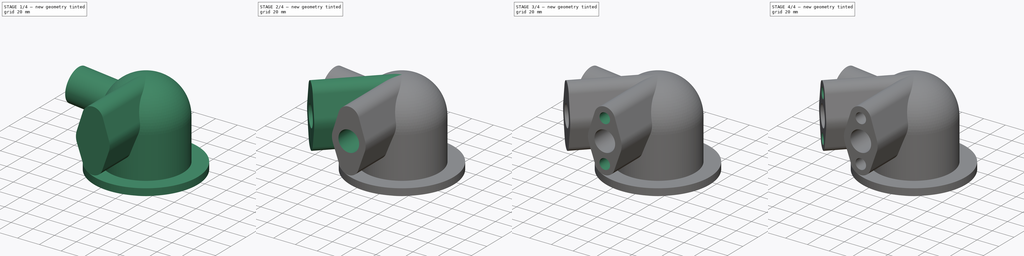
[diagram: build sequence overview — one tinted view per stage of 4, left to right]
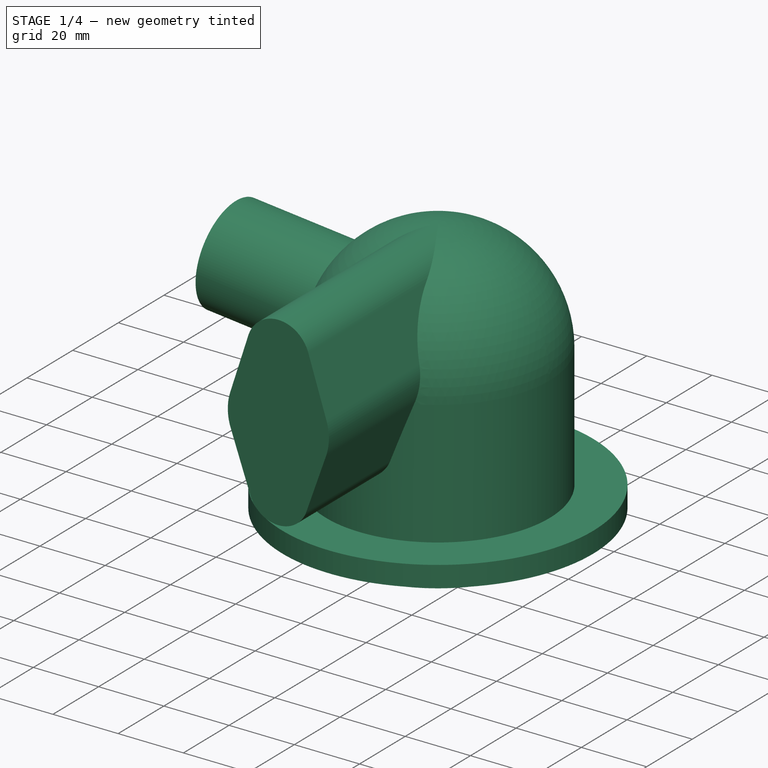
[diagram: stage 1 of 4 — iso view after this stage's code; geometry added in this stage tinted green]
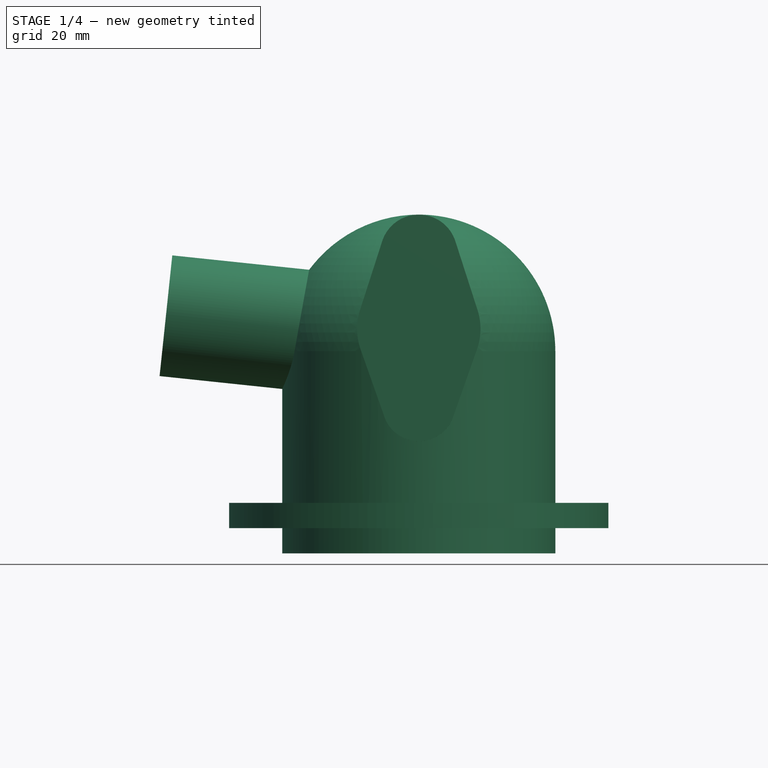
[diagram: stage 1 of 4 — front view after this stage's code; geometry added in this stage tinted green]
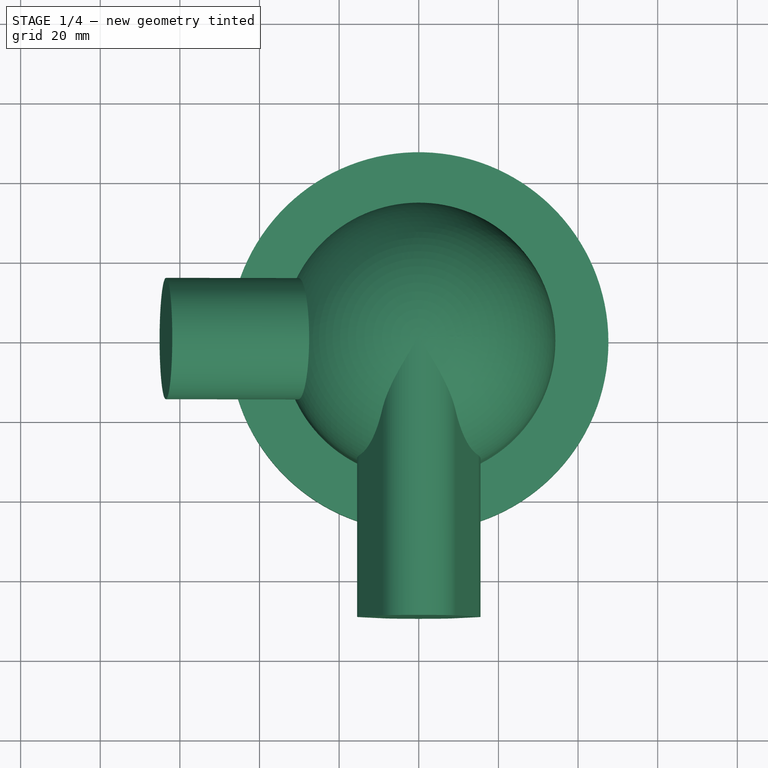
[diagram: stage 1 of 4 — top view after this stage's code; geometry added in this stage tinted green]
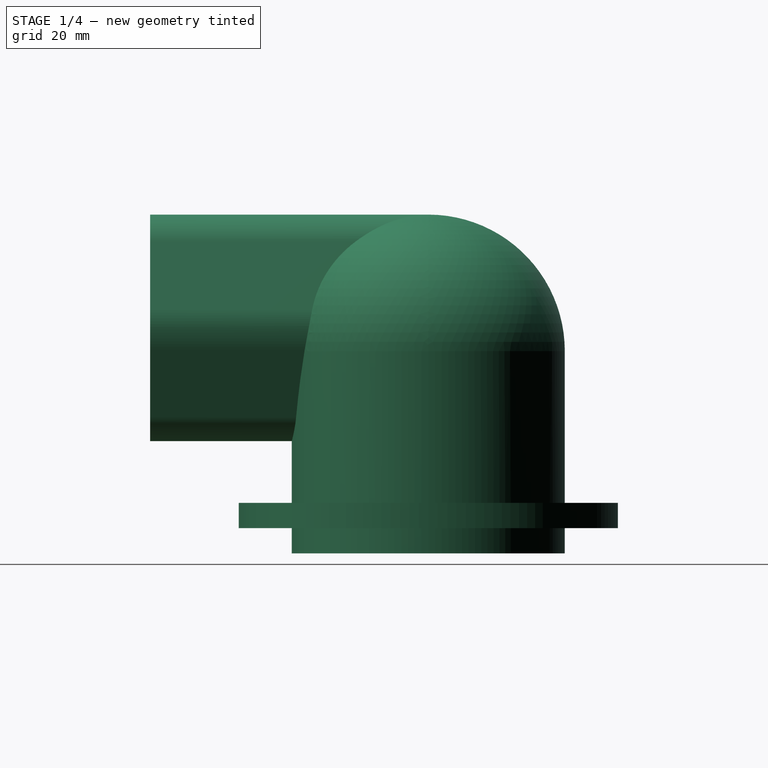
[diagram: stage 1 of 4 — right view after this stage's code; geometry added in this stage tinted green]
FCSTD DOCUMENT  (FreeCAD 1.0RUnknown)
Label: model-mania-2000
License: All rights reserved
LicenseURL: https://en.wikipedia.org/wiki/All_rights_reserved
objects: Sketcher::SketchObject×8, PartDesign::PolarPattern×3, PartDesign::Pocket×3, PartDesign::Revolution×2, PartDesign::Groove×2, Spreadsheet::Sheet×1, PartDesign::Line×1, PartDesign::Pad×1, PartDesign::Body×1
note: 48 computed .brp shape members not serialized (recipe doc carries the construction recipe); baked Part::Feature solids carry a one-line shape summary decoded from their .brp

FEATURE [Spreadsheet::Sheet] Spreadsheet  label="d"
  cells = A1='Toplevel; B1='TL; D1='TL_height; E1(TL_height)==3.35 "; A2='Dome; B2='DM; D2='DM_od; E2(DM_od)==2.7 "; A3='Pipe; B3='PI; D3='DM_thickness; E3(DM_thickness)==0.25 "; A4='Flange; B4='FG; D4='SH_diam; E4(SH_diam)==3.75 "; A5='Shoulder; B5='SH; D5='SH_thickness; E5(SH_thickness)==0.25 "; D6='SH_yos; E6(SH_yos)==0.25 "; D7='FG_height; E7(FG_height)==2.23 "; D8='FG_length; E8(FG_length)==2.75 "; D9='PI_center_out_h; E9(PI_center_out_h)==2.35 "; D10='PI_angle; E10(PI_angle)=6; D11='PI_od; E11(PI_od)==1.2 "; D12='PI_id; E12(PI_id)==0.82 "; D13='PI_length; E13(PI_length)==2.5 "
FEATURE [Sketcher::SketchObject] Sketch  label="MasterFront"
  ArcFitTolerance = 1e-06
  AttachmentSupport = -> [XZ_Plane]
  FullyConstrained = true
  MakeInternals = false
  MapMode = 5
  Placement = pos=(0,0,0) rot=(1,0,0;1.5708rad)
  expr: Constraints[45] = <<d>>.PI_angle
  expr: Constraints[46] = <<d>>.PI_length
  expr: Constraints[51] = <<d>>.PI_od
  expr: Constraints[52] = <<d>>.PI_center_out_h
  expr: Constraints[53] = <<d>>.DM_od
  expr: Constraints[54] = <<d>>.SH_yos
  expr: Constraints[55] = <<d>>.SH_thickness
  expr: Constraints[56] = <<d>>.SH_diam
  expr: Constraints[62] = (<<d>>.PI_od - <<d>>.PI_id) / 2
  expr: Constraints[68] = (<<d>>.PI_od - <<d>>.PI_id) / 2
  expr: Constraints[71] = <<d>>.TL_height
  sketch-geometry (26):
    g0: LineSegment [constr] StartX=-34.29 StartY=0 StartZ=0 EndX=-34.29 EndY=50.8 EndZ=0
    g1: ArcOfCircle CenterX=2.1e-15 CenterY=50.8 CenterZ=0 NormalX=0 NormalY=0 NormalZ=1 AngleXU=0 Radius=34.29 StartAngle=2e-16 EndAngle=3.14159
    g2: LineSegment [constr] StartX=34.29 StartY=50.8 StartZ=0 EndX=34.29 EndY=0 EndZ=0
    g3: LineSegment StartX=34.29 StartY=0 StartZ=0 EndX=-34.29 EndY=0 EndZ=0
    g4: LineSegment StartX=-34.29 StartY=6.35 StartZ=0 EndX=-47.625 EndY=6.35 EndZ=0
    g5: LineSegment StartX=-47.625 StartY=6.35 StartZ=0 EndX=-47.625 EndY=12.7 EndZ=0
    g6: LineSegment StartX=-47.625 StartY=12.7 StartZ=0 EndX=-34.29 EndY=12.7 EndZ=0
    g7: LineSegment StartX=-34.29 StartY=12.7 StartZ=0 EndX=-34.29 EndY=50.8 EndZ=0
    g8: LineSegment StartX=-34.29 StartY=0 StartZ=0 EndX=-34.29 EndY=6.35 EndZ=0
    g9: LineSegment StartX=34.29 StartY=0 StartZ=0 EndX=34.29 EndY=6.35 EndZ=0
    g10: LineSegment StartX=34.29 StartY=6.35 StartZ=0 EndX=47.625 EndY=6.35 EndZ=0
    g11: LineSegment StartX=47.625 StartY=6.35 StartZ=0 EndX=47.625 EndY=12.7 EndZ=0
    g12: LineSegment StartX=47.625 StartY=12.7 StartZ=0 EndX=34.29 EndY=12.7 EndZ=0
    g13: LineSegment StartX=34.29 StartY=12.7 StartZ=0 EndX=34.29 EndY=50.8 EndZ=0
    g14: LineSegment StartX=0 StartY=37.6919 StartZ=0 EndX=-65.093 EndY=44.5335 EndZ=0
    g15: LineSegment StartX=-65.093 StartY=44.5335 StartZ=0 EndX=-61.907 EndY=74.8465 EndZ=0
    g16: LineSegment StartX=-61.907 StartY=74.8465 StartZ=0 EndX=0 EndY=68.3398 EndZ=0
    g17: LineSegment StartX=0 StartY=68.3398 StartZ=0 EndX=0 EndY=37.6919 EndZ=0
    g18: LineSegment [constr] StartX=0 StartY=53.0159 StartZ=0 EndX=-64.2015 EndY=53.0159 EndZ=0
    g19: LineSegment StartX=-63.5 StartY=59.69 StartZ=0 EndX=0 EndY=53.0159 EndZ=0
    g20: LineSegment [constr] StartX=-30.9535 StartY=71.5932 StartZ=0 EndX=-34.1395 EndY=41.2801 EndZ=0
    g21: LineSegment StartX=-64.5886 StartY=49.333 StartZ=0 EndX=0 EndY=42.5445 EndZ=0
    g22: GeomPoint X=-33.6351 Y=46.0797 Z=0
    g23: GeomPoint X=-31.4579 Y=66.7936 Z=0
    g24: LineSegment StartX=-62.4114 StartY=70.047 StartZ=0 EndX=0 EndY=63.4872 EndZ=0
    g25: GeomPoint X=0 Y=85.09 Z=0
  constraints (72):
    c: PointOnObject(g0,g-1)
    c: Vertical(g0)
    c: Tangent(g0,g1) = 1.5708
    c: Tangent(g1,g2) = 1.5708
    c: Coincident(g2,g3)
    c: Coincident(g3,g0)
    c: Horizontal(g3)
    c: PointOnObject(g4,g0)
    c: Horizontal(g4)
    c: Coincident(g4,g5)
    c: Vertical(g5)
    c: Coincident(g5,g6)
    c: PointOnObject(g6,g0)
    c: Horizontal(g6)
    c: Coincident(g6,g7)
    c: Coincident(g7,g0)
    c: Coincident(g0,g8)
    c: Coincident(g8,g4)
    c: Coincident(g2,g9)
    c: PointOnObject(g9,g2)
    c: Coincident(g9,g10)
    c: Horizontal(g10)
    c: Coincident(g10,g11)
    c: Coincident(g11,g12)
    c: PointOnObject(g12,g2)
    c: Coincident(g12,g13)
    c: Coincident(g13,g1)
    c: Horizontal(g12)
    c: Vertical(g11)
    c: Equal(g5,g11)
    c: Symmetric(g0,g1,g-2)
    c: Symmetric(g4,g10,g-2)
    c: PointOnObject(g14,g-2)
    c: Coincident(g14,g15)
    c: Coincident(g15,g16)
    c: PointOnObject(g16,g-2)
    c: Coincident(g16,g17)
    c: Coincident(g17,g14)
    c: Perpendicular(g14,g15)
    c: Parallel(g16,g14)
    c: Symmetric(g17,g17,g18)
    c: Horizontal(g18)
    c: PointOnObject(g19,g15)
    c: Coincident(g19,g18)
    c: Perpendicular(g15,g19)
    c: Angle(g19,g18) = 0.10472
    c: DistanceX(g19,g19) = 63.5
    c: PointOnObject(g18,g15)
    c: Symmetric(g16,g16,g20)
    c: PointOnObject(g20,g14)
    c: Perpendicular(g20,g16)
    c: Distance(g20,g20) = 30.48
    c: DistanceY(g-1,g19) = 59.69
    c: DistanceX(g3,g3) = 68.58
    c: DistanceY(g10) = 6.35
    c: DistanceY(g11,g11) = 6.35
    c: DistanceX(g4,g10) = 95.25
    c: PointOnObject(g21,g15)
    c: PointOnObject(g21,g17)
    c: Parallel(g21,g14)
    c: PointOnObject(g22,g21)
    c: PointOnObject(g22,g20)
    c: Distance(g22,g20) = 4.826
    c: PointOnObject(g23,g20)
    c: PointOnObject(g24,g15)
    c: PointOnObject(g24,g17)
    c: Parallel(g24,g16)
    c: PointOnObject(g23,g24)
    c: Distance(g24,g16) = 4.826
    c: PointOnObject(g25,g-2)
    c: PointOnObject(g25,g1)
    c: DistanceY(g-1,g25) = 85.09
FEATURE [Sketcher::SketchObject] Sketch001
  ArcFitTolerance = 1e-06
  AttachmentSupport = -> [XZ_Plane]
  ExternalGeometry = -> [Sketch]
  FullyConstrained = true
  MakeInternals = false
  MapMode = 5
  Placement = pos=(0,0,0) rot=(1,0,0;1.5708rad)
  sketch-geometry (8):
    g0: LineSegment StartX=0 StartY=0 StartZ=0 EndX=0 EndY=85.09 EndZ=0
    g1: ArcOfCircle CenterX=-2.1e-15 CenterY=50.8 CenterZ=0 NormalX=0 NormalY=0 NormalZ=1 AngleXU=0 Radius=34.29 StartAngle=0 EndAngle=1.5708
    g2: LineSegment StartX=34.29 StartY=50.8 StartZ=0 EndX=34.29 EndY=12.7 EndZ=0
    g3: LineSegment StartX=34.29 StartY=12.7 StartZ=0 EndX=47.625 EndY=12.7 EndZ=0
    g4: LineSegment StartX=47.625 StartY=12.7 StartZ=0 EndX=47.625 EndY=6.35 EndZ=0
    g5: LineSegment StartX=47.625 StartY=6.35 StartZ=0 EndX=34.29 EndY=6.35 EndZ=0
    g6: LineSegment StartX=34.29 StartY=6.35 StartZ=0 EndX=34.29 EndY=0 EndZ=0
    g7: LineSegment StartX=34.29 StartY=0 StartZ=0 EndX=0 EndY=0 EndZ=0
  constraints (17):
    c: Coincident(g-1,g0)
    c: PointOnObject(g0,g-3)
    c: Vertical(g0)
    c: Perpendicular(g0,g1) = 1.5708
    c: Coincident(g1,g-4)
    c: Coincident(g1,g2)
    c: Coincident(g2,g-5)
    c: Coincident(g2,g3)
    c: Coincident(g3,g-6)
    c: Coincident(g3,g4)
    c: Coincident(g4,g-7)
    c: Coincident(g4,g5)
    c: Coincident(g5,g-8)
    c: Coincident(g5,g6)
    c: Coincident(g6,g-9)
    c: Coincident(g6,g7)
    c: Coincident(g7,g0)
FEATURE [PartDesign::Revolution] Revolution  label="Dome"
  Angle = 360
  Angle2 = 60
  Axis = (0,2e-16,1)
  Base = (0,0,0)
  Placement = pos=(0,0,0) rot=(1,0,0;1.5708rad)
  Profile = -> Sketch001
  ReferenceAxis = -> Sketch001 [V_Axis]
  Refine = true
  Reversed = true
  Suppressed = false
  Type = 0
FEATURE [PartDesign::Line] DatumLine
  AttacherType = Attacher::AttachEngineLine
  AttachmentSupport = -> [Sketch]
  Length = 20
  MapMode = 29
  Placement = pos=(5.51131,1.16e-14,52.4366) rot=(0.596473,0.596473,0.537067;2.15587rad)
  ResizeMode = 0
FEATURE [Sketcher::SketchObject] Sketch002
  ArcFitTolerance = 1e-06
  AttachmentSupport = -> [XZ_Plane]
  ExternalGeometry = -> [Sketch]
  FullyConstrained = true
  MakeInternals = false
  MapMode = 5
  Placement = pos=(0,0,0) rot=(1,0,0;1.5708rad)
  sketch-geometry (5):
    g0: LineSegment StartX=0 StartY=53.0159 StartZ=0 EndX=0 EndY=68.3398 EndZ=0
    g1: LineSegment StartX=0 StartY=68.3398 StartZ=0 EndX=-61.907 EndY=74.8465 EndZ=0
    g2: LineSegment StartX=-61.907 StartY=74.8465 StartZ=0 EndX=-63.5 EndY=59.69 EndZ=0
    g3: LineSegment StartX=-63.5 StartY=59.69 StartZ=0 EndX=0 EndY=53.0159 EndZ=0
    g4: GeomPoint X=-63.5 Y=59.69 Z=0
  constraints (9):
    c: Coincident(g0,g-3)
    c: Coincident(g0,g1)
    c: Coincident(g1,g-3)
    c: Coincident(g1,g2)
    c: Coincident(g2,g3)
    c: Coincident(g3,g0)
    c: Symmetric(g-7,g-7,g4)
    c: Symmetric(g-6,g0,g0)
    c: Coincident(g4,g2)
FEATURE [PartDesign::Revolution] Revolution001  label="Pipe"
  Angle = 360
  Angle2 = 60
  Axis = (0.994522,1e-16,-0.104528)
  Base = (5.51131,1.16e-14,52.4366)
  BaseFeature = -> Revolution
  Placement = pos=(0,0,0) rot=(1,0,0;1.5708rad)
  Profile = -> Sketch002
  ReferenceAxis = -> DatumLine
  Refine = true
  Suppressed = false
  Type = 0
FEATURE [Sketcher::SketchObject] Sketch003
  ArcFitTolerance = 1e-06
  AttachmentSupport = -> [XZ_Plane]
  FullyConstrained = false
  MakeInternals = false
  MapMode = 5
  Placement = pos=(0,0,0) rot=(1,0,0;1.5708rad)
  expr: Constraints[23] = <<d>>.TL_height
  sketch-geometry (12):
    g0: GeomPoint X=0 Y=85.09 Z=0
    g1: Circle CenterX=-3e-16 CenterY=75.438 CenterZ=0 NormalX=0 NormalY=0 NormalZ=1 AngleXU=0 Radius=4.826
    g2: Circle CenterX=-4e-16 CenterY=56.388 CenterZ=0 NormalX=0 NormalY=0 NormalZ=1 AngleXU=0 Radius=9.525
    g3: Circle CenterX=-4e-16 CenterY=37.338 CenterZ=0 NormalX=0 NormalY=0 NormalZ=1 AngleXU=0 Radius=4.826
    g4: ArcOfCircle CenterX=-3e-16 CenterY=75.438 CenterZ=0 NormalX=0 NormalY=0 NormalZ=1 AngleXU=0 Radius=9.652 StartAngle=0.311689 EndAngle=2.8299
    g5: ArcOfCircle CenterX=-4e-16 CenterY=37.338 CenterZ=0 NormalX=0 NormalY=0 NormalZ=1 AngleXU=0 Radius=9.14703 StartAngle=3.48126 EndAngle=5.94352
    g6: ArcOfCircle CenterX=-4e-16 CenterY=56.388 CenterZ=0 NormalX=0 NormalY=0 NormalZ=1 AngleXU=0 Radius=15.494 StartAngle=2.8299 EndAngle=3.48126
    g7: ArcOfCircle CenterX=-4e-16 CenterY=56.388 CenterZ=0 NormalX=0 NormalY=0 NormalZ=1 AngleXU=0 Radius=15.494 StartAngle=5.94352 EndAngle=6.59487
    g8: LineSegment StartX=-14.7475 StartY=61.1395 StartZ=0 EndX=-9.18694 EndY=78.3979 EndZ=0
    g9: LineSegment StartX=9.18694 StartY=78.3979 StartZ=0 EndX=14.7475 EndY=61.1395 EndZ=0
    g10: LineSegment StartX=14.6088 StartY=51.2258 StartZ=0 EndX=8.62442 EndY=34.2904 EndZ=0
    g11: LineSegment StartX=-14.6088 StartY=51.2258 StartZ=0 EndX=-8.62442 EndY=34.2904 EndZ=0
  constraints (24):
    c: PointOnObject(g0,g-2)
    c: Symmetric(g1,g3,g2)
    c: Diameter(g1) = 9.652
    c: Diameter(g2) = 19.05
    c: DistanceY(g3,g1) = 38.1
    c: Equal(g1,g3)
    c: Coincident(g4,g1)
    c: Coincident(g5,g3)
    c: Coincident(g6,g2)
    c: Coincident(g7,g2)
    c: Symmetric(g5,g5,g-2)
    c: Symmetric(g4,g4,g-2)
    c: PointOnObject(g0,g4)
    c: Radius(g4) = 9.652
    c: Tangent(g9,g7) = 1.5708
    c: Tangent(g10,g7) = 1.5708
    c: Tangent(g8,g6) = 1.5708
    c: Tangent(g11,g6) = -1.5708
    c: Tangent(g10,g5) = 1.5708
    c: Tangent(g9,g4) = 1.5708
    c: Tangent(g8,g4) = 1.5708
    c: Radius(g7) = 15.494
    c: Coincident(g11,g5)
    c: DistanceY(g-1,g0) = 85.09
FEATURE [PartDesign::Pad] Pad  label="Flange1"
  BaseFeature = -> Revolution001
  Direction = (0,-1,2e-16)
  Length = 69.85
  Length2 = 10
  Placement = pos=(0,0,0) rot=(1,0,0;1.5708rad)
  Profile = -> Sketch003 [Edge4,Edge11,Edge10,Edge9,Edge8,Edge7,Vertex6,Edge5,Edge6]
  ReferenceAxis = -> Sketch003 [N_Axis]
  Refine = true
  Suppressed = false
  Type = 0
  expr: Length = <<d>>.FG_length
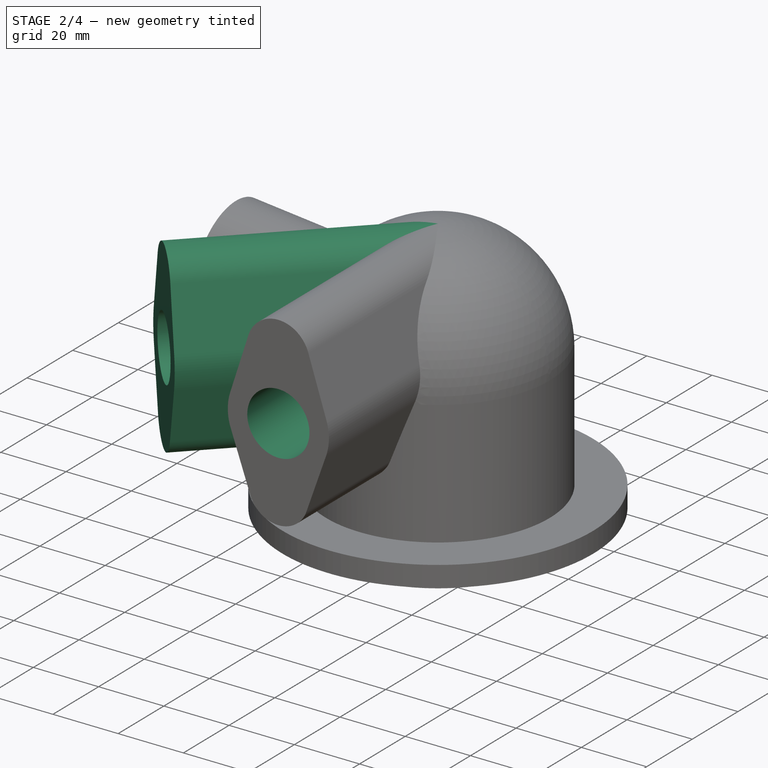
[diagram: stage 2 of 4 — iso view after this stage's code; geometry added in this stage tinted green]
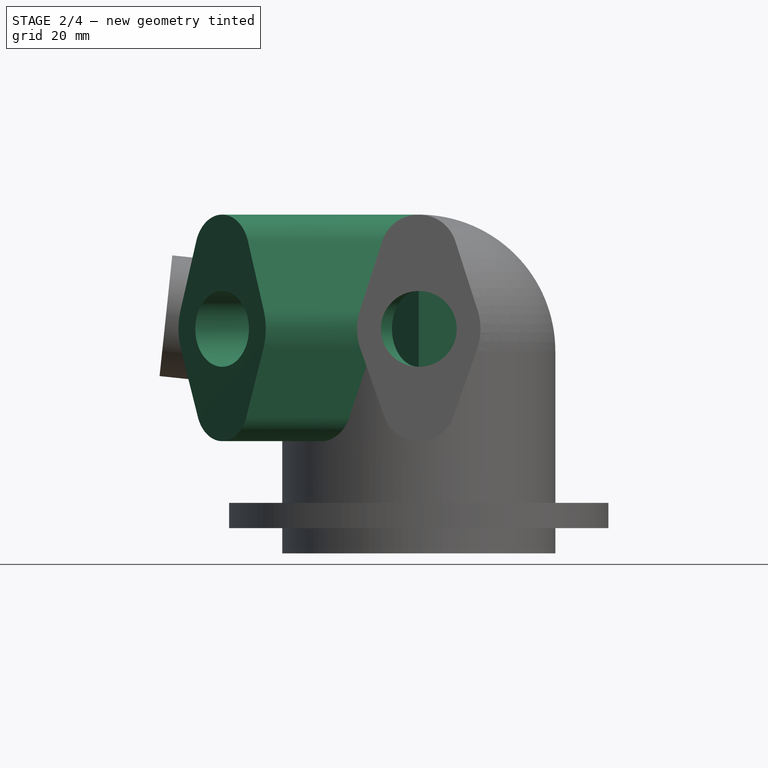
[diagram: stage 2 of 4 — front view after this stage's code; geometry added in this stage tinted green]
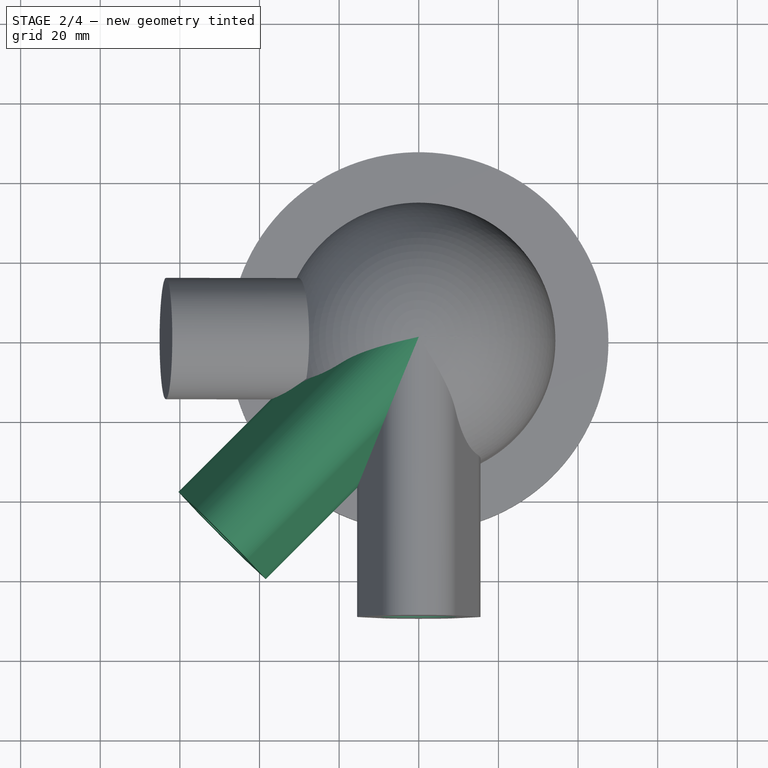
[diagram: stage 2 of 4 — top view after this stage's code; geometry added in this stage tinted green]
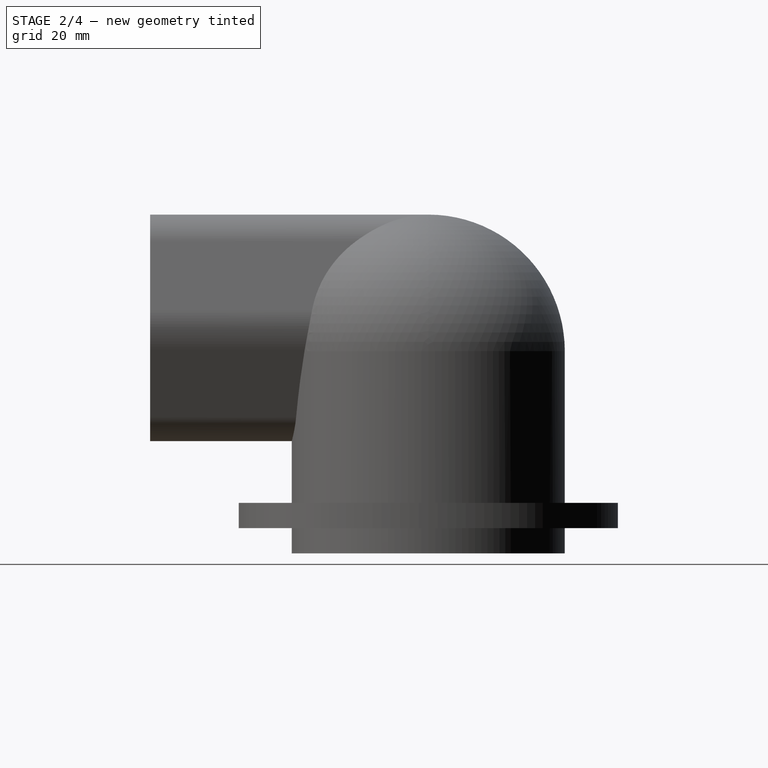
[diagram: stage 2 of 4 — right view after this stage's code; geometry added in this stage tinted green]
FEATURE [PartDesign::PolarPattern] PolarPattern  label="Flange2"
  Angle = 45
  Axis = -> Z_Axis
  BaseFeature = -> Pad
  Mode = 0
  Occurrences = 2
  Offset = 120
  Originals = -> [Pad]
  Placement = pos=(0,0,0) rot=(1,0,0;1.5708rad)
  Refine = true
  Reversed = true
  Suppressed = false
  TransformMode = 0
FEATURE [PartDesign::Pocket] Pocket  label="FlangeBore1"
  BaseFeature = -> PolarPattern
  Direction = (0,1,-2e-16)
  Length = 5
  Length2 = 5
  Placement = pos=(0,0,0) rot=(1,0,0;1.5708rad)
  Profile = -> Sketch003 [Edge2]
  ReferenceAxis = -> Sketch003 [N_Axis]
  Refine = true
  Reversed = true
  Suppressed = false
  Type = 1
FEATURE [PartDesign::PolarPattern] PolarPattern001  label="FlangeBore2"
  Angle = 45
  Axis = -> Z_Axis
  BaseFeature = -> Pocket
  Mode = 0
  Occurrences = 2
  Offset = 120
  Originals = -> [Pocket]
  Placement = pos=(0,0,0) rot=(1,0,0;1.5708rad)
  Refine = true
  Reversed = true
  Suppressed = false
  TransformMode = 0
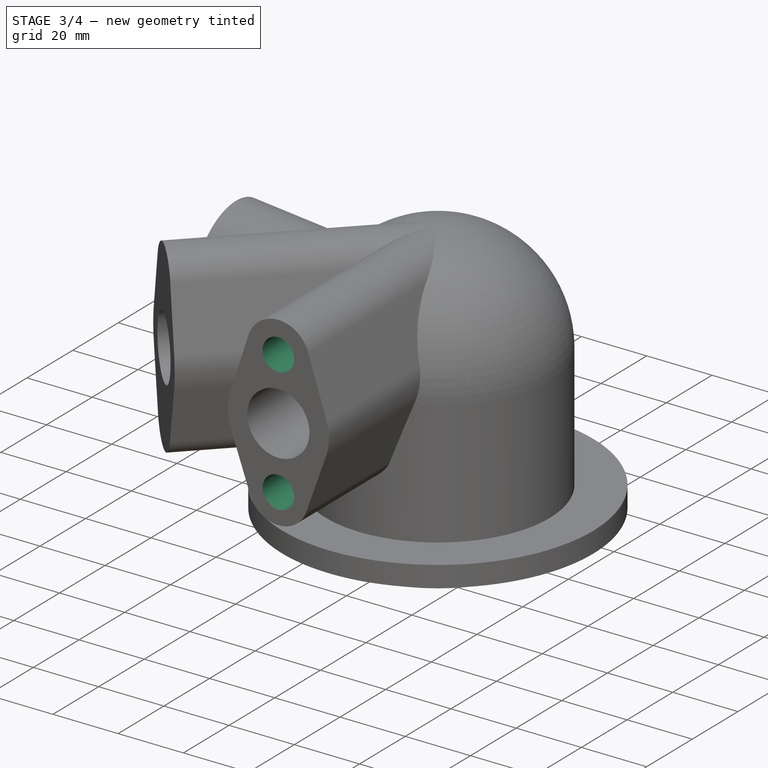
[diagram: stage 3 of 4 — iso view after this stage's code; geometry added in this stage tinted green]
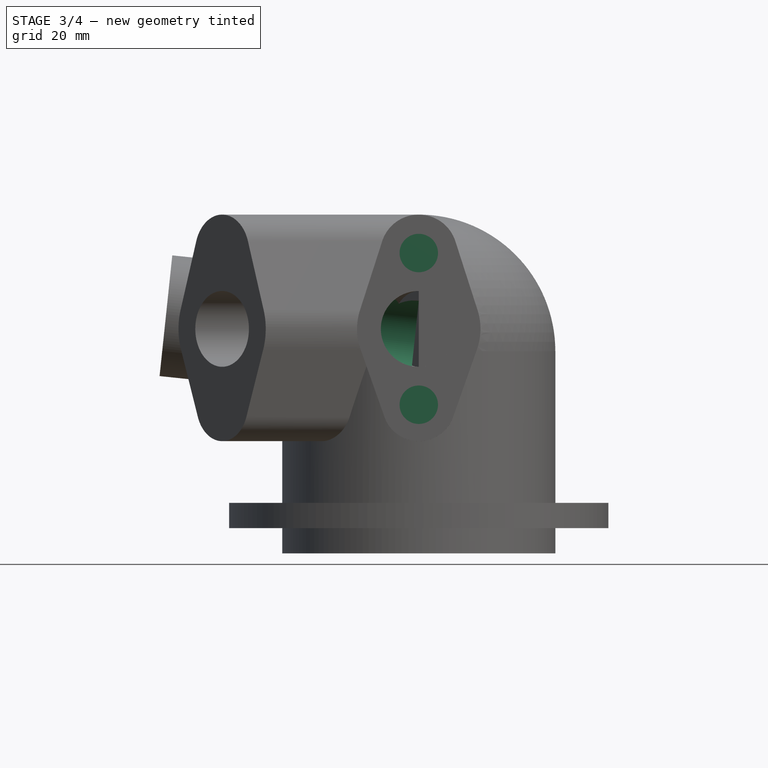
[diagram: stage 3 of 4 — front view after this stage's code; geometry added in this stage tinted green]
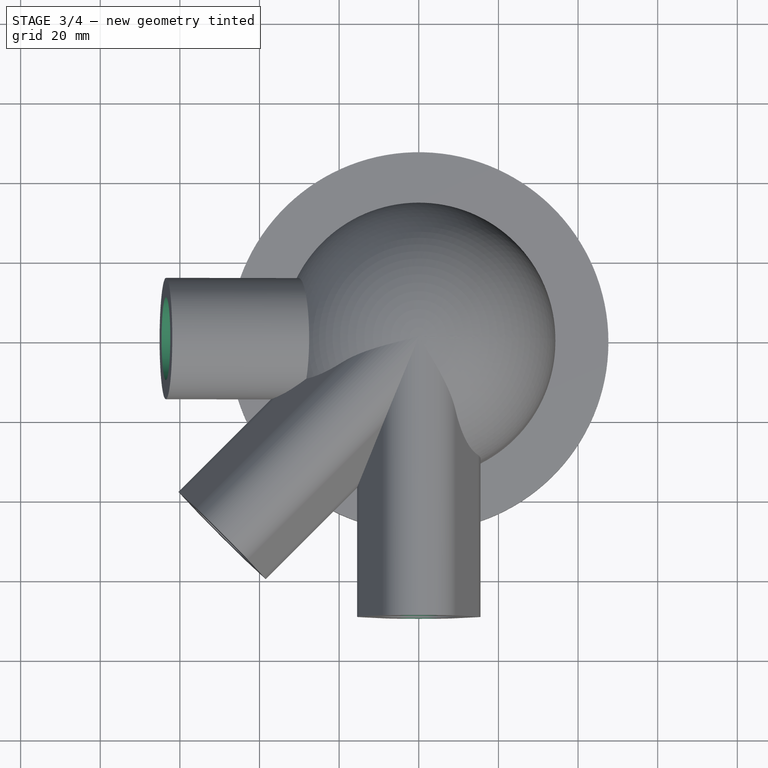
[diagram: stage 3 of 4 — top view after this stage's code; geometry added in this stage tinted green]
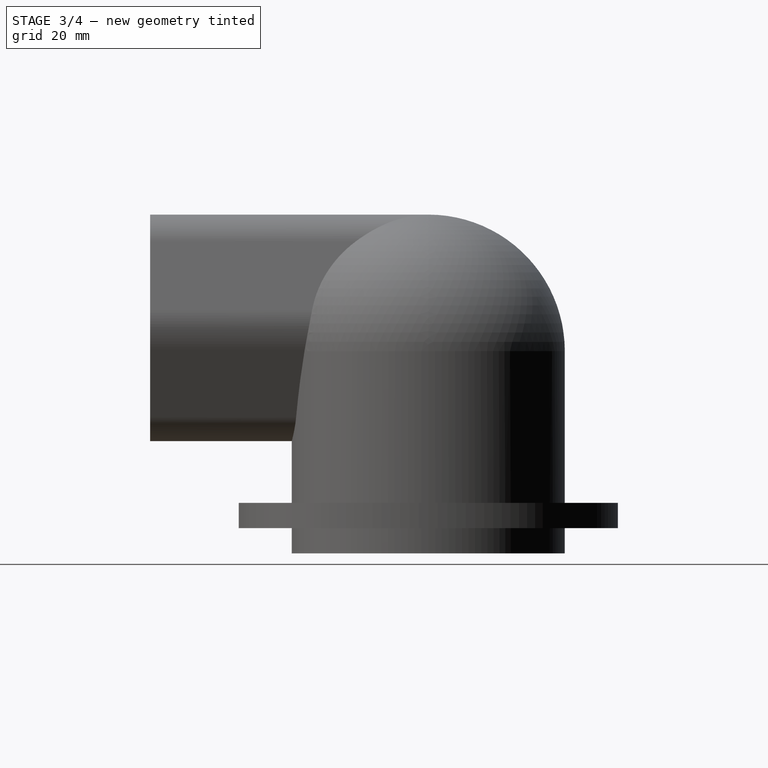
[diagram: stage 3 of 4 — right view after this stage's code; geometry added in this stage tinted green]
FEATURE [Sketcher::SketchObject] Sketch004
  ArcFitTolerance = 1e-06
  AttachmentSupport = -> [XZ_Plane]
  ExternalGeometry = -> [Sketch]
  FullyConstrained = true
  MakeInternals = false
  MapMode = 5
  Placement = pos=(0,0,0) rot=(1,0,0;1.5708rad)
  sketch-geometry (5):
    g0: LineSegment StartX=-62.4114 StartY=70.047 StartZ=0 EndX=0 EndY=63.4872 EndZ=0
    g1: LineSegment [constr] StartX=0 StartY=63.4872 StartZ=0 EndX=0 EndY=42.5445 EndZ=0
    g2: LineSegment StartX=-62.4114 StartY=70.047 StartZ=0 EndX=-63.5 EndY=59.69 EndZ=0
    g3: LineSegment StartX=-63.5 StartY=59.69 StartZ=0 EndX=-1.08856 EndY=53.1303 EndZ=0
    g4: LineSegment StartX=0 StartY=63.4872 StartZ=0 EndX=-1.08856 EndY=53.1303 EndZ=0
  constraints (10):
    c: Coincident(g0,g-3)
    c: Coincident(g0,g1)
    c: Coincident(g1,g-4)
    c: Coincident(g0,g2)
    c: Coincident(g2,g-5)
    c: Coincident(g2,g3)
    c: Coincident(g-3,g0)
    c: Coincident(g4,g0)
    c: Perpendicular(g3,g4) = 4.71239
    c: PointOnObject(g3,g-5)
FEATURE [PartDesign::Groove] Groove  label="PipeBore_groove"
  Angle = 360
  Angle2 = 60
  Axis = (0.994522,1e-16,-0.104528)
  Base = (5.51131,1.16e-14,52.4366)
  BaseFeature = -> PolarPattern001
  Placement = pos=(0,0,0) rot=(1,0,0;1.5708rad)
  Profile = -> Sketch004
  ReferenceAxis = -> DatumLine
  Refine = true
  Reversed = true
  Suppressed = false
  Type = 0
FEATURE [Sketcher::SketchObject] Sketch005
  ArcFitTolerance = 1e-06
  AttachmentOffset = pos=(0,59.69,-63.6601) rot=(1,0,0;0.10472rad)
  AttachmentSupport = -> [YZ_Plane]
  FullyConstrained = true
  MakeInternals = false
  MapMode = 5
  Placement = pos=(-63.6601,0,59.69) rot=(0.596473,0.596473,0.537067;2.15587rad)
  expr: .AttachmentOffset.Base.y = <<d>>.PI_center_out_h
  expr: .AttachmentOffset.Base.z = -(<<d>>.PI_length * cos(<<d>>.PI_angle)) - 0.02 "
  expr: Constraints[0] = <<d>>.PI_id
  sketch-geometry (1):
    g0: Circle CenterX=0 CenterY=0 CenterZ=0 NormalX=0 NormalY=0 NormalZ=1 AngleXU=0 Radius=10.414
  constraints (2):
    c: Diameter(g0) = 20.828
    c: Coincident(g0,g-1)
FEATURE [Sketcher::SketchObject] Sketch006
  ArcFitTolerance = 1e-06
  AttachmentOffset = pos=(0,0,69.85) rot=(0,0,1;0rad)
  AttachmentSupport = -> [XZ_Plane]
  ExternalGeometry = -> [Sketch003]
  FullyConstrained = true
  MakeInternals = false
  MapMode = 5
  Placement = pos=(0,-69.85,1.55e-14) rot=(1,0,0;1.5708rad)
  expr: .AttachmentOffset.Base.z = <<d>>.FG_length
  sketch-geometry (2):
    g0: Circle CenterX=0 CenterY=75.438 CenterZ=0 NormalX=0 NormalY=0 NormalZ=1 AngleXU=0 Radius=4.826
    g1: Circle CenterX=0 CenterY=37.338 CenterZ=0 NormalX=0 NormalY=0 NormalZ=1 AngleXU=0 Radius=4.826
  constraints (4):
    c: Coincident(g0,g-3)
    c: Coincident(g1,g-4)
    c: Equal(g0,g1)
    c: Equal(g-3,g0)
FEATURE [PartDesign::Pocket] Pocket002  label="FlangeMountingHoles1"
  BaseFeature = -> Groove
  Direction = (0,1,-2e-16)
  Length = 25.4
  Length2 = 5
  Placement = pos=(0,0,0) rot=(1,0,0;1.5708rad)
  Profile = -> Sketch006
  ReferenceAxis = -> Sketch006 [N_Axis]
  Refine = true
  Suppressed = false
  Type = 0
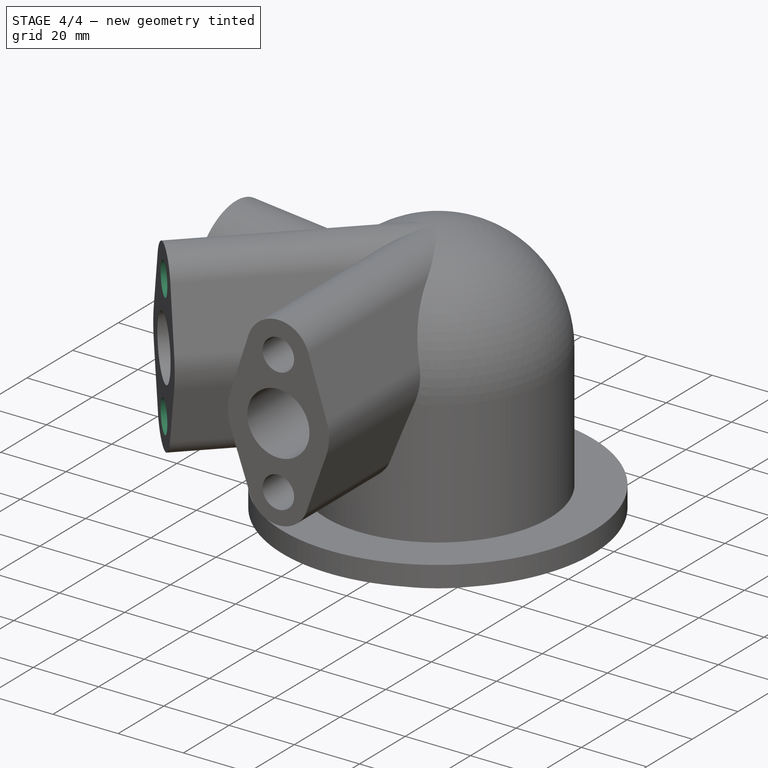
[diagram: stage 4 of 4 — iso view after this stage's code; geometry added in this stage tinted green]
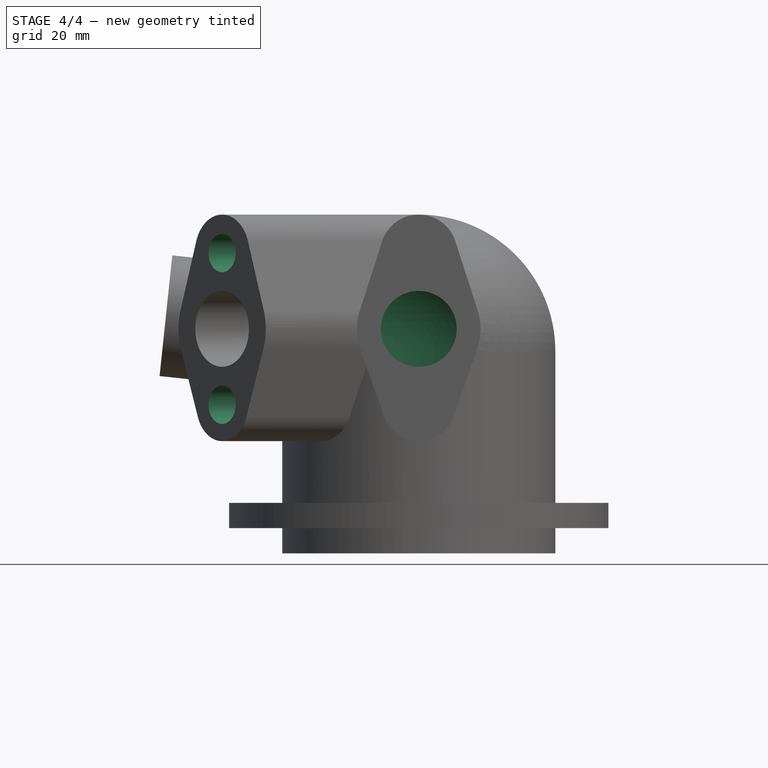
[diagram: stage 4 of 4 — front view after this stage's code; geometry added in this stage tinted green]
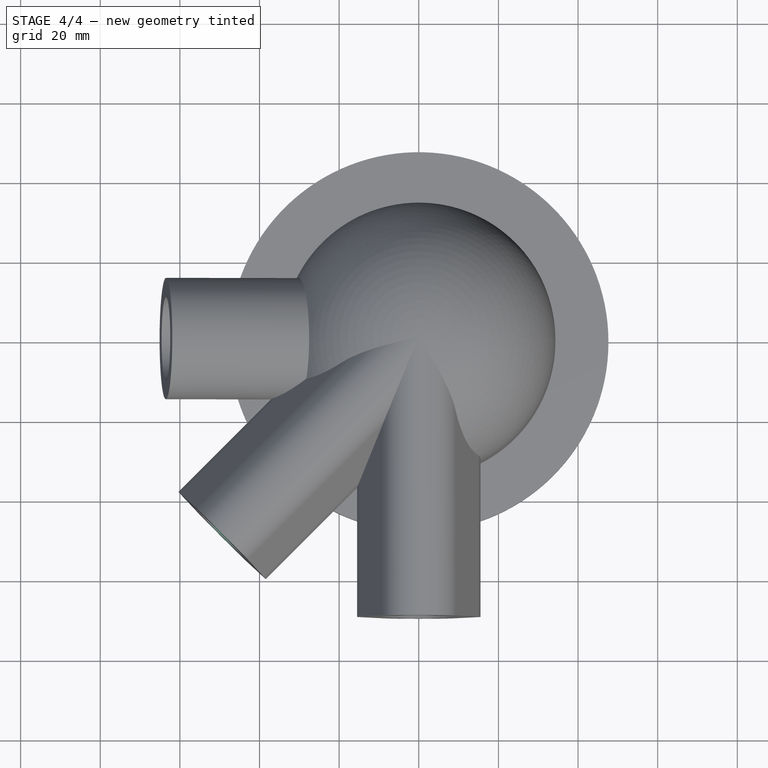
[diagram: stage 4 of 4 — top view after this stage's code; geometry added in this stage tinted green]
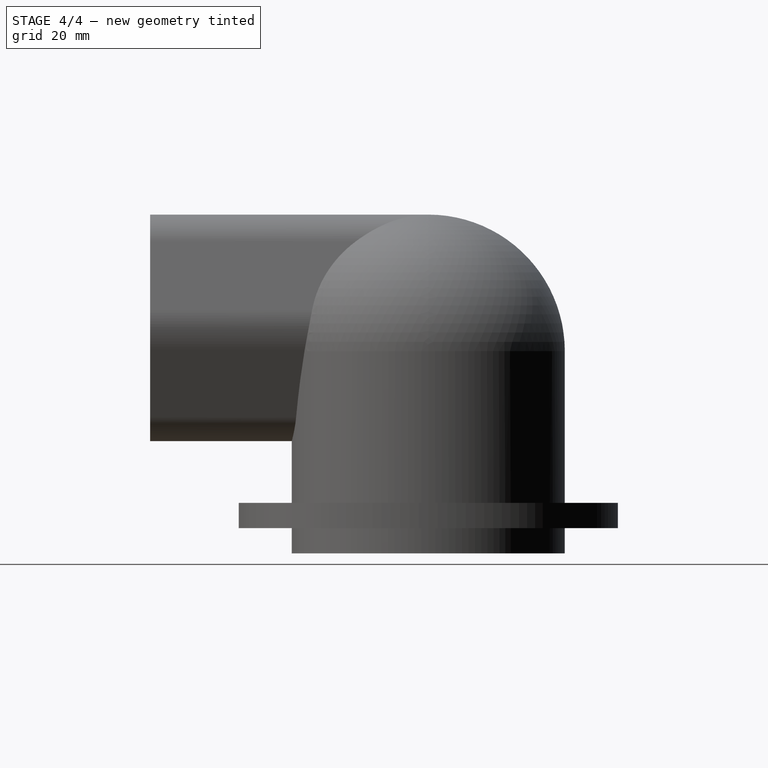
[diagram: stage 4 of 4 — right view after this stage's code; geometry added in this stage tinted green]
FEATURE [PartDesign::PolarPattern] PolarPattern002  label="FlangeMountingHoles2"
  Angle = 45
  Axis = -> Z_Axis
  BaseFeature = -> Pocket002
  Mode = 0
  Occurrences = 2
  Offset = 120
  Originals = -> [Pocket002]
  Placement = pos=(0,0,0) rot=(1,0,0;1.5708rad)
  Refine = true
  Reversed = true
  Suppressed = false
  TransformMode = 0
FEATURE [Sketcher::SketchObject] Sketch007
  ArcFitTolerance = 1e-06
  AttachmentSupport = -> [XZ_Plane]
  ExternalGeometry = -> [Sketch]
  FullyConstrained = true
  MakeInternals = false
  MapMode = 5
  Placement = pos=(0,0,0) rot=(1,0,0;1.5708rad)
  expr: Constraints[8] = <<d>>.DM_thickness
  sketch-geometry (7):
    g0: LineSegment [constr] StartX=1.8e-15 StartY=85.09 StartZ=0 EndX=1.8e-15 EndY=78.74 EndZ=0
    g1: LineSegment [constr] StartX=34.29 StartY=50.8 StartZ=0 EndX=27.94 EndY=50.8 EndZ=0
    g2: LineSegment [constr] StartX=34.29 StartY=0 StartZ=0 EndX=27.94 EndY=0 EndZ=0
    g3: LineSegment StartX=27.94 StartY=0 StartZ=0 EndX=27.94 EndY=50.8 EndZ=0
    g4: ArcOfCircle CenterX=1.4953e-12 CenterY=50.8 CenterZ=0 NormalX=0 NormalY=0 NormalZ=1 AngleXU=0 Radius=27.94 StartAngle=0 EndAngle=1.5708
    g5: LineSegment StartX=1.8e-15 StartY=78.74 StartZ=0 EndX=0 EndY=0 EndZ=0
    g6: LineSegment StartX=0 StartY=0 StartZ=0 EndX=27.94 EndY=0 EndZ=0
  constraints (18):
    c: PointOnObject(g0,g-5)
    c: Vertical(g0)
    c: Coincident(g1,g-5)
    c: Coincident(g2,g-3)
    c: PointOnObject(g2,g-1)
    c: Equal(g0,g1)
    c: Equal(g1,g2)
    c: Horizontal(g1)
    c: DistanceX(g2,g2) = 6.35
    c: PointOnObject(g0,g-2)
    c: Coincident(g2,g3)
    c: Coincident(g3,g1)
    c: Tangent(g3,g4) = -1.5708
    c: Coincident(g4,g0)
    c: Coincident(g4,g5)
    c: Coincident(g5,g-1)
    c: Coincident(g5,g6)
    c: Coincident(g6,g3)
FEATURE [PartDesign::Groove] Groove001  label="DomeBore"
  Angle = 360
  Angle2 = 60
  Axis = (0,2e-16,1)
  Base = (0,0,0)
  BaseFeature = -> PolarPattern002
  Placement = pos=(0,0,0) rot=(1,0,0;1.5708rad)
  Profile = -> Sketch007
  ReferenceAxis = -> Sketch007 [V_Axis]
  Refine = true
  Suppressed = false
  Type = 0
FEATURE [PartDesign::Pocket] Pocket001  label="PipeBore_sketch_moved_to_pipe_end"
  BaseFeature = -> Groove001
  Direction = (-0.994522,0,0.104528)
  Length = 63.5
  Length2 = 5
  Placement = pos=(0,0,0) rot=(1,0,0;1.5708rad)
  Profile = -> Sketch005
  ReferenceAxis = -> Sketch005 [N_Axis]
  Refine = true
  Reversed = true
  Suppressed = true
  Type = 0
  expr: Length = <<d>>.PI_length
FEATURE [PartDesign::Body] Body
  AllowCompound = false
  Group = -> [Sketch,Sketch001,Revolution,DatumLine,Sketch002,Revolution001,Sketch003,Pad,PolarPattern,Pocket,PolarPattern001,Sketch004,Groove,Sketch005,Sketch006,Pocket002,PolarPattern002,Sketch007,Groove001,Pocket001]
  Origin = -> Origin
  Tip = -> Groove001
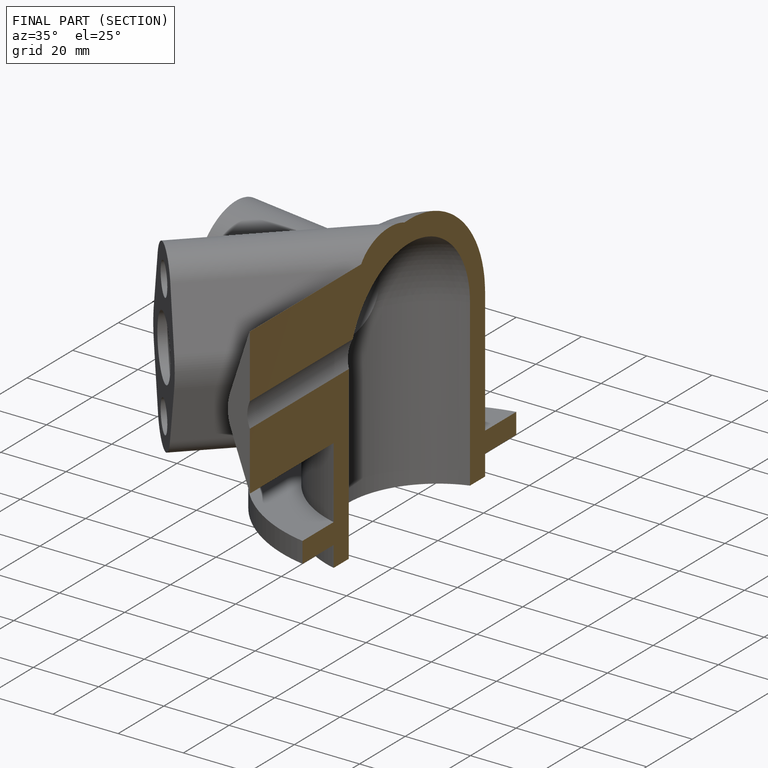
[diagram: finished part — half-section view (interior)]
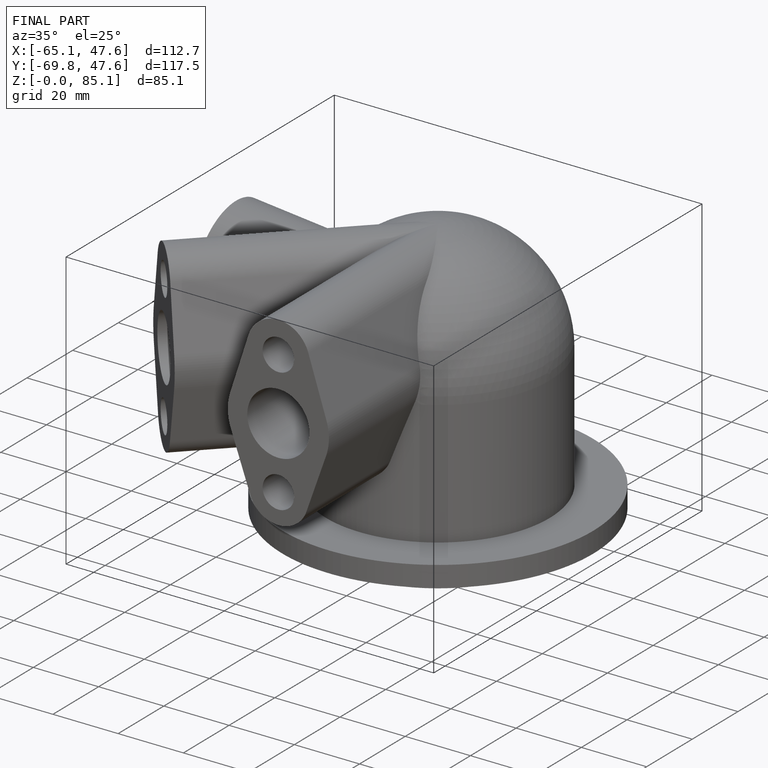
[diagram: finished part — iso view with bounding-box wireframe]
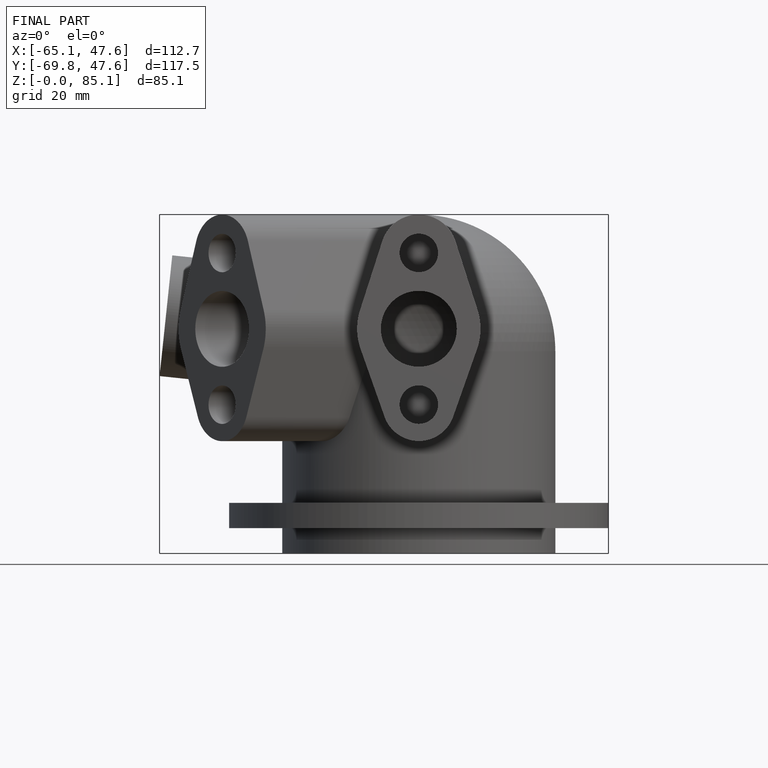
[diagram: finished part — front view with bounding-box wireframe]
